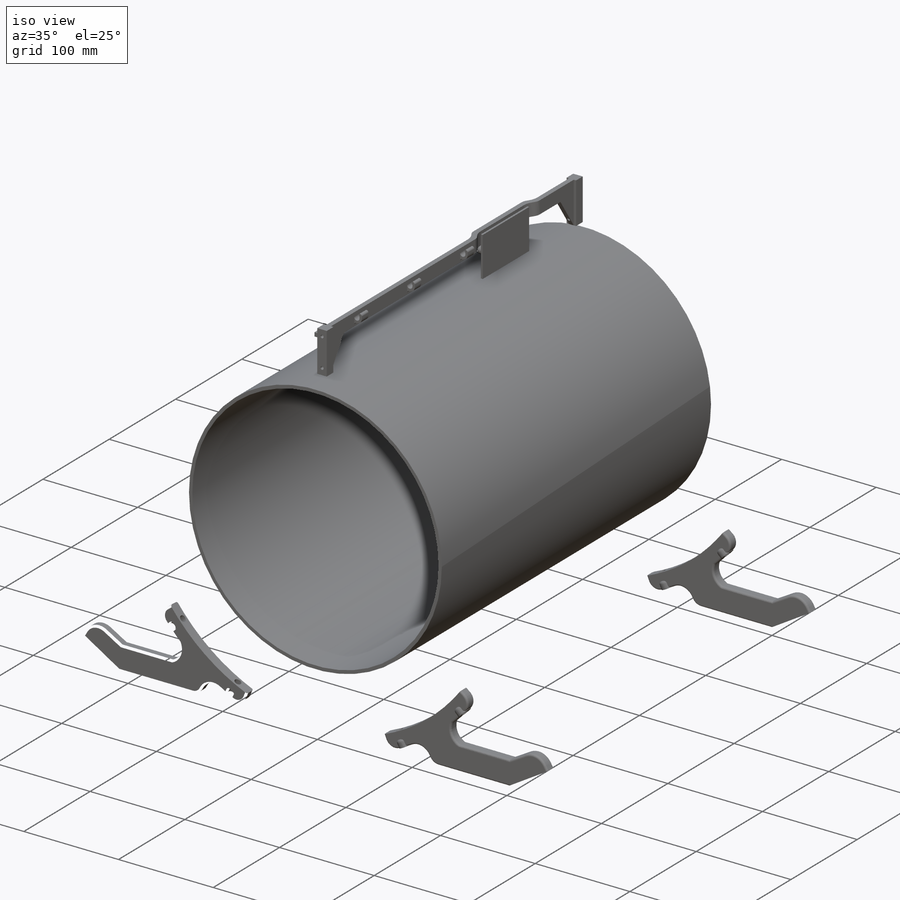
[diagram: iso view]
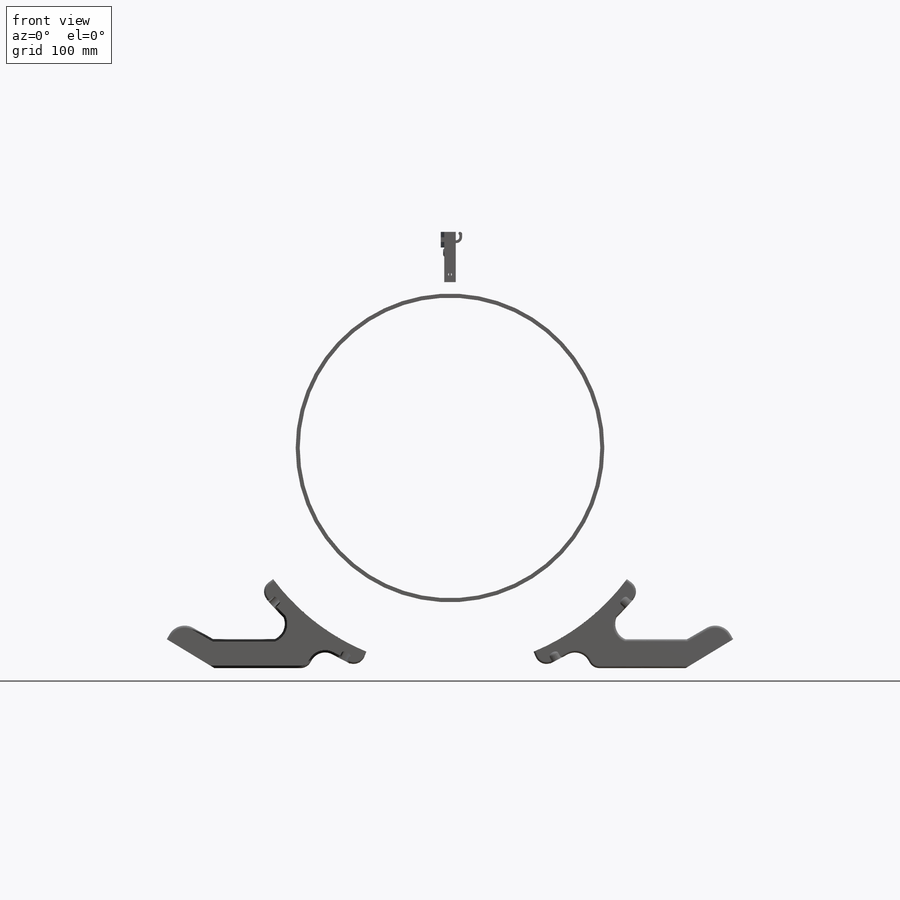
[diagram: front view]
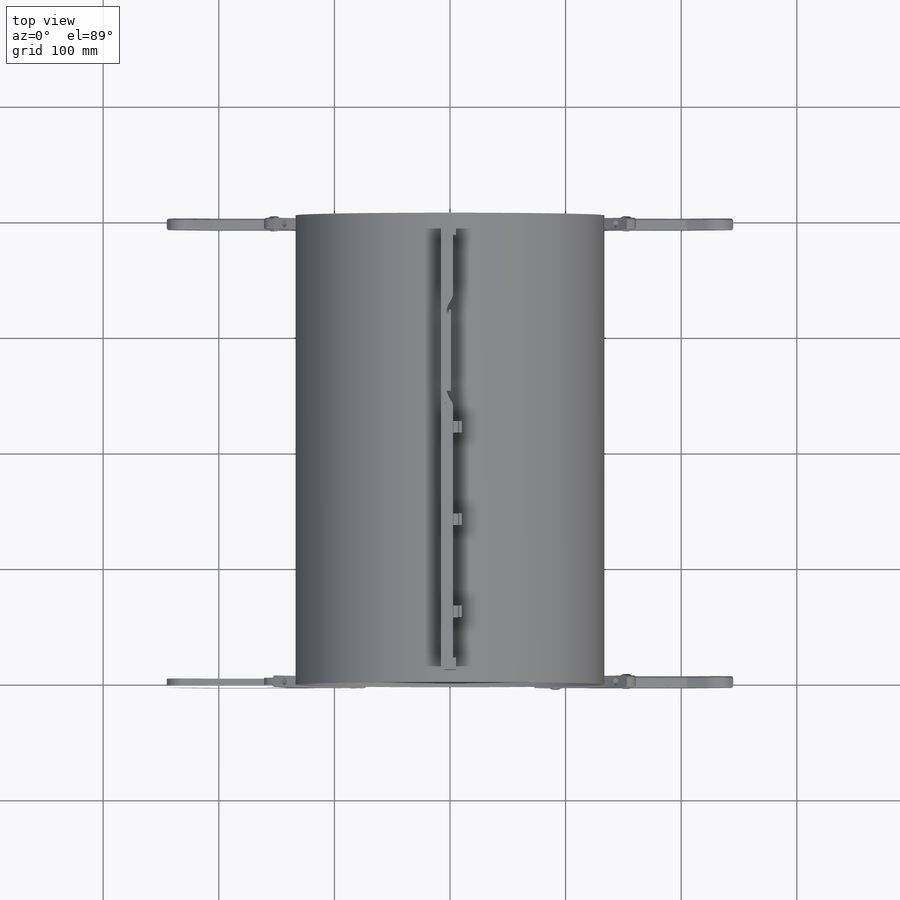
[diagram: top view]
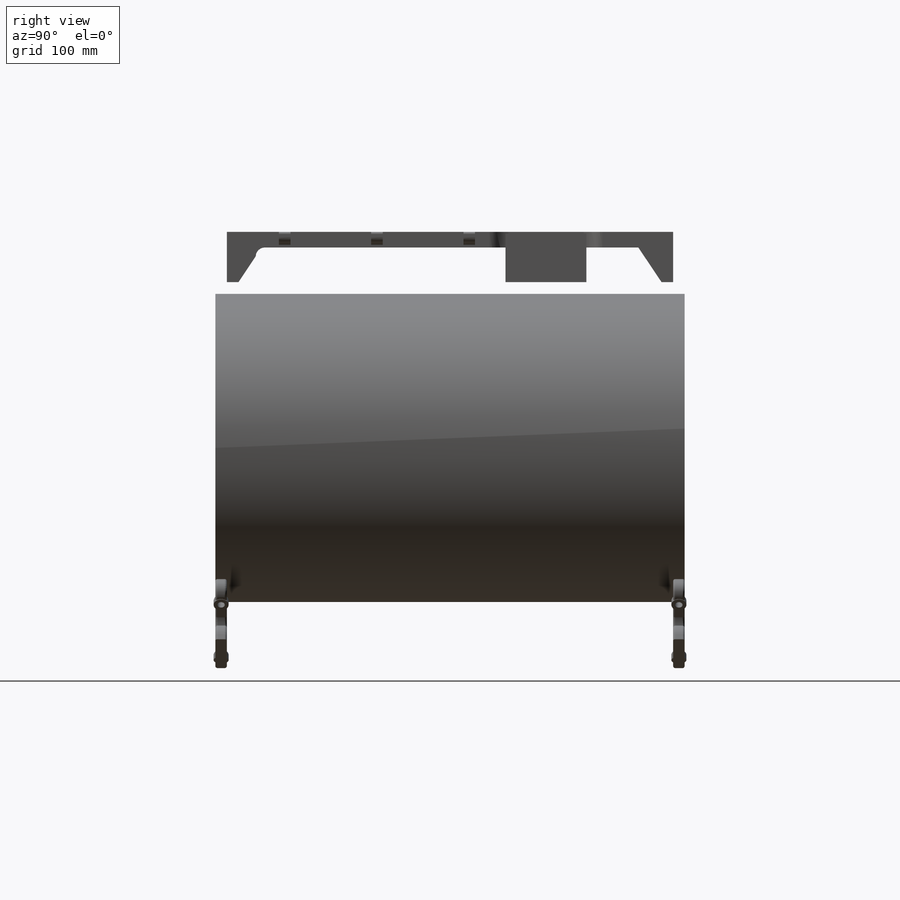
[diagram: right view]
SOLIDWORKS PART (.sldprt)
format: sldprt  version: not decoded by parser v0  size: 2,570,752 bytes
history: native  units: mm
features: sketch x40, extrude x16, fillet x14, cut_extrude x13, plane x7, mirror x7, hole x3, material x1 (+11 scaffold rows collapsed)
feature tree (112):
  scaffold x11  (default folders/planes/origin — collapsed)
  material  "Material <not specified>"
  sketch  "Sketch1"  dims[D1=~146.602957mm]
  extrude  "Boss-Extrude1"  Depth=203mm
  sketch  "Sketch2"  dims[D2=~215.483813mm D1=3.0mm]
  extrude  "Boss-Extrude2"  Depth=5mm
  sketch  "Sketch3"  dims[D1=3.0mm]
  extrude  "Boss-Extrude3"  Depth=10mm
  sketch  "Sketch4"
  extrude  "Front flange"  Depth=5mm
  sketch  "Sketch6"  dims[D1=10.0mm D2=10.0mm]
  extrude  "Boss-Extrude6"  Depth=10mm
  sketch  "Sketch7"  dims[c1.D1=315.0deg c2.D1=10.0mm c2.D2=10.0mm c2.D3=10.0mm c2.D4=10.0mm]
  extrude  "Boss-Extrude8"  Depth=10mm
  sketch  "Sketch8"
  cut_extrude  "Cut-Extrude1"  Depth=10mm
  plane  "Plane1"  Offset=118mm
  sketch  "Sketch10"  dims[D1=1.0mm D2=1.0mm]
  extrude  "Boss-Extrude9"  Depth=70mm
  plane  "Plane2"
  sketch  "Sketch11"  dims[c1.D1=386.0mm c1.D3=5.0mm c2.D1=2.5mm c2.D2=2.5mm c3.D1=0.5mm c3.D2=5.0mm]
  extrude  "Boss-Extrude10"  Depth=42mm
  sketch  "Sketch12"  dims[D1=1.5mm]
  cut_extrude  "Cut-Extrude3"  [1 undecoded]
  fillet  "Fillet1"  Radius=17mm
  fillet  "Fillet2"  Radius=10mm
  sketch  "Sketch13"  dims[c1.D1=171.0mm c2.D1=225.0deg c3.D1=12.0mm c4.D1=~5.521906deg]
  cut_extrude  "Cut-Extrude4"  [1 undecoded]
  sketch  "Sketch18"  dims[D1=2.2479mm]
  cut_extrude  "Cut-Extrude5"  Depth=35mm
  mirror  "Mirror2"
  sketch  "Sketch19"  dims[D1=31.0mm]
  extrude  "Boss-Extrude11"  Depth=5mm
  fillet  "Fillet3"  Radius=2.5mm
  sketch  "Sketch21"  dims[c1.D1=2.7mm c1.D2=1.5mm c2.D1=2.5mm c2.D2=0.0mm]
  extrude  "Boss-Extrude12"  [1 undecoded]
  sketch  "Sketch23"
  extrude  "Boss-Extrude13"  [1 undecoded]
  sketch  "Sketch25"  dims[D1=5.0mm D2=5.0mm]
  cut_extrude  "Cut-Extrude7"  Depth=25mm
  sketch  "Sketch61"  dims[D1=2.0mm]
  extrude  "Boss-Extrude19"  [1 undecoded]
  sketch  "Sketch62"
  cut_extrude  "Cut-Extrude23"  [1 undecoded]
  sketch  "Sketch28"
  cut_extrude  "Cut-Extrude9"  Depth=25mm
  fillet  "Fillet5"  Radius=8mm
  fillet  "Fillet6"  Radius=2mm
  fillet  "Fillet7"  Radius=4mm
  fillet  "Fillet8"  Radius=4mm
  plane  "Plane3"  Offset=203mm
  sketch  "Sketch30"  dims[c1.D1=20.0mm c2.D1=120.0deg c3.D1=15.0mm]
  extrude  "Boss-Extrude14"  [1 undecoded]
  plane  "Plane4"  Offset=183mm
  plane  "Plane5"
  sketch  "Sketch31"  dims[D1=~2.639318mm]
  plane  "Plane6"
  sketch  "Sketch32"  dims[D1=15.0mm]
  cut_extrude  "Cut-Extrude10"  [1 undecoded]
  cut_extrude  "Cut-Extrude12"  Depth=10mm
  sketch  "Sketch36"  dims[D1=67.5deg]
  hole  "CSK for #8 Flat Head Machine Screw (100)3"  Diameter=4.4958mm Depth=15mm
  sketch  "3DSketch4"
  sketch  "Sketch37"  dims[hole-wizard template sketch: 55 standard entries collapsed; hole parameters kept: c17.Thru Hole Depth=15.0mm c17.Near C'Sink Dia.=8.4328mm c17.D4=~3.666174mm c17.Near C'Sink Angle=100.0deg]
  sketch  "Sketch39"  dims[D1=0.6479mm]
  hole  "CSK for #8 Flat Head Machine Screw (100)7"  Diameter=4.4958mm Depth=416mm
  sketch  "3DSketch8"
  sketch  "Sketch41"  dims[hole-wizard template sketch: 55 standard entries collapsed; hole parameters kept: c17.Thru Hole Depth=416.0mm c17.Near C'Sink Dia.=8.4328mm c17.D4=~3.666174mm c17.Near C'Sink Angle=100.0deg]
  sketch  "Sketch42"  dims[D1=~2.238209mm]
  cut_extrude  "Cut-Extrude19"  Depth=35mm
  sketch  "Sketch43"  dims[D1=~0.809795mm]
  cut_extrude  "Cut-Extrude20"  Depth=35mm
  mirror  "Mirror6"
  mirror  "Mirror9"
  sketch  "Sketch48"
  extrude  "Boss-Extrude18"  [1 undecoded]
  fillet  "Fillet10"  Radius=3.5mm
  fillet  "Fillet11"  Radius=15mm
  fillet  "Fillet12"  Radius=10mm
  sketch  "Sketch45"  dims[D1=~6.546238mm]
  extrude  "Boss-Extrude16"  Depth=8mm
  fillet  "Fillet13"  Radius=3mm
  sketch  "Sketch46"  dims[D1=~5.447669mm]
  extrude  "Boss-Extrude17"  Depth=8mm
  fillet  "Fillet14"  Radius=3mm
  fillet  "Fillet15"  Radius=2mm
  fillet  "Fillet16"  Radius=2mm
  mirror  "Mirror15"
  mirror  "Mirror16"
  mirror  "Mirror17"
  sketch  "Sketch49"  dims[D1=~2.130393mm]
  cut_extrude  "Cut-Extrude21"  Depth=35mm
  sketch  "Sketch51"  dims[D1=~1.376288mm]
  cut_extrude  "Cut-Extrude22"  Depth=35mm
  mirror  "Mirror18"
  sketch  "Sketch52"  dims[D1=112.5deg]
  plane  "Plane7"
  sketch  "Sketch53"  dims[D1=8.0mm]
  sketch  "Sketch54"
  hole  "CSK for #8 Flat Head Machine Screw (100)8"  Diameter=4.4958mm Depth=416.227958mm
  sketch  "3DSketch11"
  sketch  "Sketch59"  dims[hole-wizard template sketch: 55 standard entries collapsed; hole parameters kept: c17.Thru Hole Depth=~416.227958mm c17.Near C'Sink Dia.=8.4328mm c17.D4=~3.666174mm c17.Near C'Sink Angle=100.0deg]
decode coverage: 67 of 93 modeling features carry decoded parameters
note: ~ marks probable driven/reference dimensions
note: 9 parameter values undecoded
summary: no parameter record found for 9 features
note: suppression state not decoded; provenance and decode notes live in map.json
